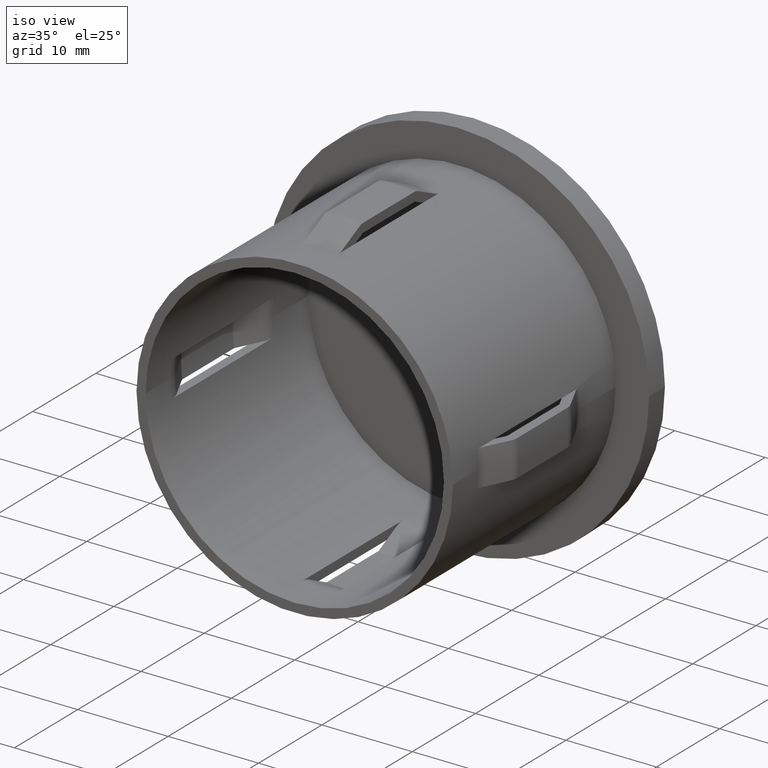
[diagram: clean part render]
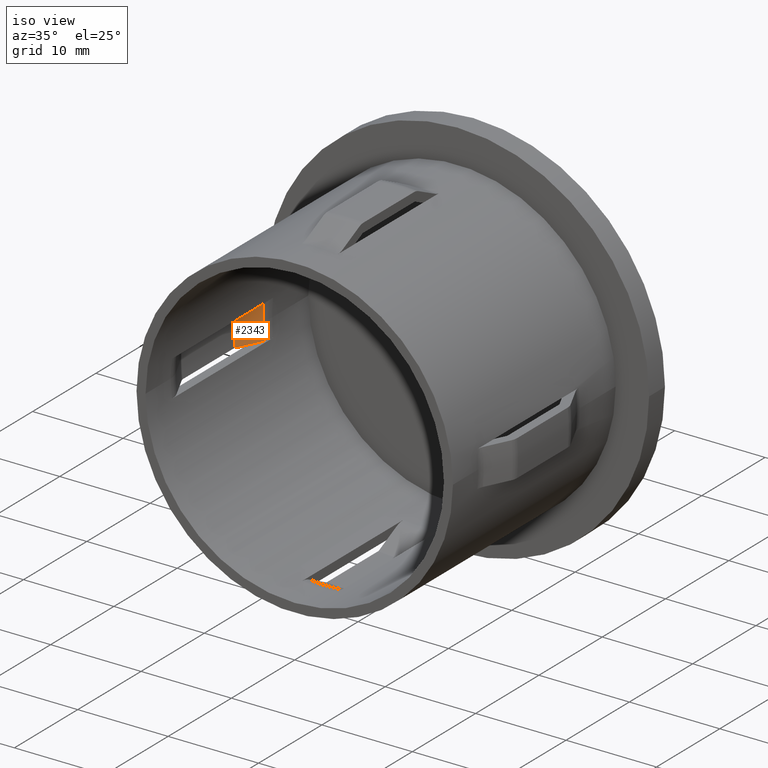
[diagram: same view with one face highlighted and labeled with its STEP entity id]
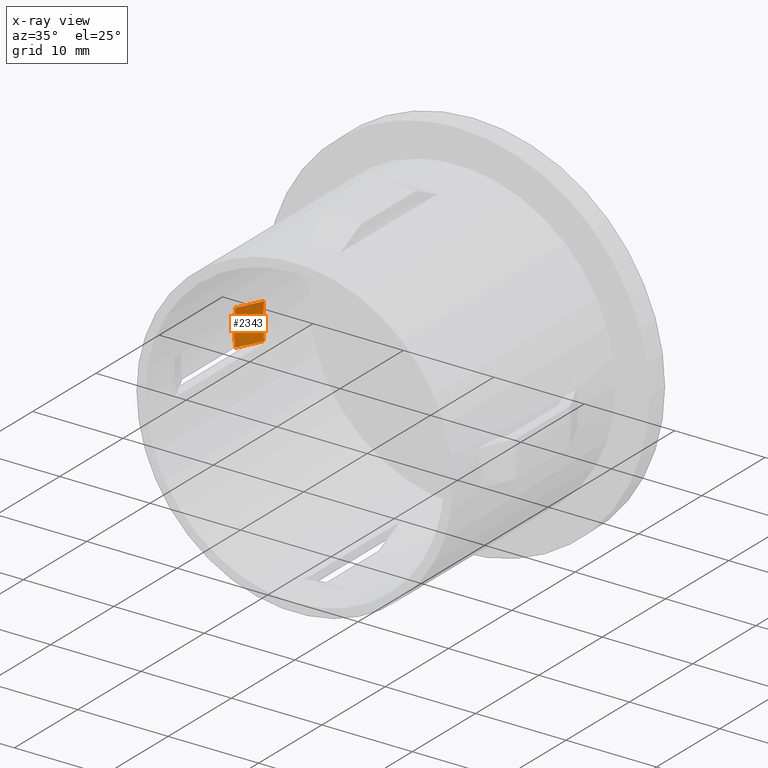
[diagram: x-ray of the same camera — body ghosted, the highlighted face saturated]
A machine part, iso view. The second image highlights one B-rep face of the part: STEP entity #2343.
The next image is the same camera in x-ray: the body ghosted, the highlighted face saturated — about 0% of this face is hidden behind the body in this view.
In plain terms, the highlighted conical surface has half-angle 25.774 deg.
Its self-contained STEP definition (entity closure, byte-faithful):
#196 = AXIS2_PLACEMENT_3D ( 'NONE', #9840, #10829, #485 ) ;
#238 = CARTESIAN_POINT ( 'NONE',  ( -17.93911509318548200, 16.21740934651483500, -2.000000000000000000 ) ) ;
#485 = DIRECTION ( 'NONE',  ( -1.000000000000000000, -2.071471771857612700E-016, 0.0000000000000000000 ) ) ;
#509 = CARTESIAN_POINT ( 'NONE',  ( -17.88087973093610100, 16.33727328974383400, 2.000000000000000000 ) ) ;
#610 = EDGE_LOOP ( 'NONE', ( #7361, #12492, #5141, #1278, #12341, #6146, #8983, #4524 ) ) ;
#631 = CARTESIAN_POINT ( 'NONE',  ( -17.38533865071371000, 17.35700652122431000, -2.000000000000000000 ) ) ;
#1113 = CARTESIAN_POINT ( 'NONE',  ( 1.347339927811579300E-015, 18.91295326742577400, 0.0000000000000000000 ) ) ;
#1278 = ORIENTED_EDGE ( 'NONE', *, *, #8350, .T. ) ;
#1351 = CARTESIAN_POINT ( 'NONE',  ( -17.33971576675815700, 17.45087171480061300, 2.000000000000000000 ) ) ;
#1396 = EDGE_CURVE ( 'NONE', #5750, #6612, #1506, .T. ) ;
#1506 = B_SPLINE_CURVE_WITH_KNOTS ( 'NONE', 3,
 ( #631, #12965, #6771, #8836, #4747, #9153, #2987 ),
 .UNSPECIFIED., .F., .F.,
 ( 4, 3, 4 ),
 ( 0.004378804806375629500, 0.005246043296429199500, 0.005645828840888100800 ),
 .UNSPECIFIED. ) ;
#1655 = CARTESIAN_POINT ( 'NONE',  ( -17.82264155235981900, 16.45713586471631400, 2.000000000000000000 ) ) ;
#2062 = EDGE_CURVE ( 'NONE', #9828, #10041, #8697, .T. ) ;
#2343 = ADVANCED_FACE ( 'NONE', ( #9919 ), #4262, .F. ) ;
#2681 = CARTESIAN_POINT ( 'NONE',  ( -17.51170683890154200, 17.09701028184609600, 2.000000000000000000 ) ) ;
#2833 = DIRECTION ( 'NONE',  ( -1.000000000000000000, -1.922103693935728200E-016, 0.0000000000000000000 ) ) ;
#2928 = CARTESIAN_POINT ( 'NONE',  ( 1.809492420670234900E-015, 16.21740934651483800, 0.0000000000000000000 ) ) ;
#2987 = CARTESIAN_POINT ( 'NONE',  ( -17.93911509318548200, 16.21740934651483500, -2.000000000000000000 ) ) ;
#3068 = CARTESIAN_POINT ( 'NONE',  ( -17.38533865071371000, 17.35700652122431000, -2.000000000000000000 ) ) ;
#3112 = CARTESIAN_POINT ( 'NONE',  ( -17.10281892833116800, 17.93825836376821000, -2.000000000000000000 ) ) ;
#3169 = EDGE_CURVE ( 'NONE', #7962, #11142, #4351, .T. ) ;
#3187 = EDGE_CURVE ( 'NONE', #6612, #6613, #9838, .T. ) ;
#3265 = CARTESIAN_POINT ( 'NONE',  ( -16.86587062389105200, 18.42562000170656900, 2.000000000000000000 ) ) ;
#3427 = CARTESIAN_POINT ( 'NONE',  ( -18.05025900995758500, 16.21740934651483500, 0.0000000000000000000 ) ) ;
#4096 = DIRECTION ( 'NONE',  ( 1.714505518806297100E-016, -1.000000000000000000, 0.0000000000000000000 ) ) ;
#4163 = CARTESIAN_POINT ( 'NONE',  ( 1.347339927811579300E-015, 18.91295326742577400, 0.0000000000000000000 ) ) ;
#4262 = CONICAL_SURFACE ( 'NONE', #7551, 16.74870495021205800, 0.4498369306774434000 ) ;
#4351 = CIRCLE ( 'NONE', #196, 16.74870495021205800 ) ;
#4524 = ORIENTED_EDGE ( 'NONE', *, *, #1396, .F. ) ;
#4559 = B_SPLINE_CURVE_WITH_KNOTS ( 'NONE', 3,
 ( #10537, #3265, #12647, #1351, #8448, #10489, #6390 ),
 .UNSPECIFIED., .F., .F.,
 ( 4, 3, 4 ),
 ( 0.004089893231726079100, 0.005715621511993973000, 0.005819986832373658800 ),
 .UNSPECIFIED. ) ;
#4622 = CARTESIAN_POINT ( 'NONE',  ( -17.38533865071371000, 17.35700652122430700, 2.000000000000000000 ) ) ;
#4747 = CARTESIAN_POINT ( 'NONE',  ( -17.82264155235981900, 16.45713586471631400, -2.000000000000000000 ) ) ;
#4909 = B_SPLINE_CURVE_WITH_KNOTS ( 'NONE', 3,
 ( #11328, #10278, #3112, #5103, #10328, #12319, #3068 ),
 .UNSPECIFIED., .F., .F.,
 ( 4, 3, 4 ),
 ( 0.004089893231726079100, 0.005715621511993973000, 0.005819986832373654500 ),
 .UNSPECIFIED. ) ;
#5103 = CARTESIAN_POINT ( 'NONE',  ( -17.33971576675815700, 17.45087171480061300, -2.000000000000000000 ) ) ;
#5141 = ORIENTED_EDGE ( 'NONE', *, *, #3169, .T. ) ;
#5471 = EDGE_CURVE ( 'NONE', #6613, #10041, #9651, .T. ) ;
#5581 = CARTESIAN_POINT ( 'NONE',  ( -16.62886398733412800, 18.91295326742577000, 2.000000000000000000 ) ) ;
#5677 = CARTESIAN_POINT ( 'NONE',  ( -17.93911509318547800, 16.21740934651483500, 2.000000000000000000 ) ) ;
#5750 = VERTEX_POINT ( 'NONE', #8411 ) ;
#6146 = ORIENTED_EDGE ( 'NONE', *, *, #5471, .F. ) ;
#6390 = CARTESIAN_POINT ( 'NONE',  ( -17.38533865071371000, 17.35700652122430700, 2.000000000000000000 ) ) ;
#6563 = CARTESIAN_POINT ( 'NONE',  ( -16.62886398733412800, 18.91295326742577000, -2.000000000000000000 ) ) ;
#6612 = VERTEX_POINT ( 'NONE', #238 ) ;
#6613 = VERTEX_POINT ( 'NONE', #3427 ) ;
#6771 = CARTESIAN_POINT ( 'NONE',  ( -17.63806047703512200, 16.83700697013932100, -2.000000000000000000 ) ) ;
#7361 = ORIENTED_EDGE ( 'NONE', *, *, #11065, .F. ) ;
#7454 = DIRECTION ( 'NONE',  ( -1.000000000000000000, -2.071471771857612700E-016, 0.0000000000000000000 ) ) ;
#7551 = AXIS2_PLACEMENT_3D ( 'NONE', #4163, #4096, #11300 ) ;
#7691 = DIRECTION ( 'NONE',  ( -1.000000000000000000, -1.922103693935728200E-016, 0.0000000000000000000 ) ) ;
#7797 = EDGE_CURVE ( 'NONE', #11131, #7962, #10737, .T. ) ;
#7804 = CARTESIAN_POINT ( 'NONE',  ( -17.76440047383716300, 16.57699703055094900, 2.000000000000000000 ) ) ;
#7814 = CARTESIAN_POINT ( 'NONE',  ( -16.74870495021205800, 18.91295326742577000, 0.0000000000000000000 ) ) ;
#7962 = VERTEX_POINT ( 'NONE', #7814 ) ;
#8350 = EDGE_CURVE ( 'NONE', #11142, #9828, #4559, .T. ) ;
#8411 = CARTESIAN_POINT ( 'NONE',  ( -17.38533865071371000, 17.35700652122431000, -2.000000000000000000 ) ) ;
#8448 = CARTESIAN_POINT ( 'NONE',  ( -17.35492360666576100, 17.41958341994696000, 2.000000000000000000 ) ) ;
#8697 = B_SPLINE_CURVE_WITH_KNOTS ( 'NONE', 3,
 ( #4622, #2681, #12974, #7804, #1655, #509, #5677 ),
 .UNSPECIFIED., .F., .F.,
 ( 4, 3, 4 ),
 ( 0.004378804806375633000, 0.005246043296429199500, 0.005645828840888099000 ),
 .UNSPECIFIED. ) ;
#8836 = CARTESIAN_POINT ( 'NONE',  ( -17.76440047383716300, 16.57699703055094900, -2.000000000000000000 ) ) ;
#8983 = ORIENTED_EDGE ( 'NONE', *, *, #3187, .F. ) ;
#9153 = CARTESIAN_POINT ( 'NONE',  ( -17.88087973093610100, 16.33727328974383400, -2.000000000000000000 ) ) ;
#9651 = CIRCLE ( 'NONE', #12269, 18.05025900995758900 ) ;
#9828 = VERTEX_POINT ( 'NONE', #11824 ) ;
#9838 = CIRCLE ( 'NONE', #13121, 18.05025900995758900 ) ;
#9840 = CARTESIAN_POINT ( 'NONE',  ( 1.347339927811579300E-015, 18.91295326742577400, 0.0000000000000000000 ) ) ;
#9919 = FACE_OUTER_BOUND ( 'NONE', #610, .T. ) ;
#10041 = VERTEX_POINT ( 'NONE', #10687 ) ;
#10278 = CARTESIAN_POINT ( 'NONE',  ( -16.86587062389105200, 18.42562000170656900, -2.000000000000000000 ) ) ;
#10328 = CARTESIAN_POINT ( 'NONE',  ( -17.35492360666576100, 17.41958341994696000, -2.000000000000000000 ) ) ;
#10408 = DIRECTION ( 'NONE',  ( -1.714505518806297100E-016, 1.000000000000000000, -0.0000000000000000000 ) ) ;
#10489 = CARTESIAN_POINT ( 'NONE',  ( -17.37013123409689500, 17.38829502181712900, 2.000000000000000000 ) ) ;
#10537 = CARTESIAN_POINT ( 'NONE',  ( -16.62886398733412800, 18.91295326742577000, 2.000000000000000000 ) ) ;
#10687 = CARTESIAN_POINT ( 'NONE',  ( -17.93911509318547800, 16.21740934651483500, 2.000000000000000000 ) ) ;
#10737 = CIRCLE ( 'NONE', #11323, 16.74870495021205800 ) ;
#10829 = DIRECTION ( 'NONE',  ( -1.714505518806297100E-016, 1.000000000000000000, -0.0000000000000000000 ) ) ;
#11065 = EDGE_CURVE ( 'NONE', #11131, #5750, #4909, .T. ) ;
#11131 = VERTEX_POINT ( 'NONE', #6563 ) ;
#11142 = VERTEX_POINT ( 'NONE', #5581 ) ;
#11300 = DIRECTION ( 'NONE',  ( 1.000000000000000000, 2.071471771857612700E-016, 0.0000000000000000000 ) ) ;
#11323 = AXIS2_PLACEMENT_3D ( 'NONE', #1113, #10408, #7454 ) ;
#11328 = CARTESIAN_POINT ( 'NONE',  ( -16.62886398733412800, 18.91295326742577000, -2.000000000000000000 ) ) ;
#11823 = CARTESIAN_POINT ( 'NONE',  ( 1.809492420670234900E-015, 16.21740934651483800, 0.0000000000000000000 ) ) ;
#11824 = CARTESIAN_POINT ( 'NONE',  ( -17.38533865071371000, 17.35700652122430700, 2.000000000000000000 ) ) ;
#12135 = DIRECTION ( 'NONE',  ( -1.714505518806297100E-016, 1.000000000000000000, -0.0000000000000000000 ) ) ;
#12269 = AXIS2_PLACEMENT_3D ( 'NONE', #2928, #12135, #2833 ) ;
#12319 = CARTESIAN_POINT ( 'NONE',  ( -17.37013123409689900, 17.38829502181713200, -2.000000000000000000 ) ) ;
#12341 = ORIENTED_EDGE ( 'NONE', *, *, #2062, .T. ) ;
#12492 = ORIENTED_EDGE ( 'NONE', *, *, #7797, .T. ) ;
#12647 = CARTESIAN_POINT ( 'NONE',  ( -17.10281892833116800, 17.93825836376821000, 2.000000000000000000 ) ) ;
#12965 = CARTESIAN_POINT ( 'NONE',  ( -17.51170683890154200, 17.09701028184610300, -2.000000000000000000 ) ) ;
#12974 = CARTESIAN_POINT ( 'NONE',  ( -17.63806047703512200, 16.83700697013931700, 2.000000000000000000 ) ) ;
#12992 = DIRECTION ( 'NONE',  ( -1.714505518806297100E-016, 1.000000000000000000, -0.0000000000000000000 ) ) ;
#13121 = AXIS2_PLACEMENT_3D ( 'NONE', #11823, #12992, #7691 ) ;